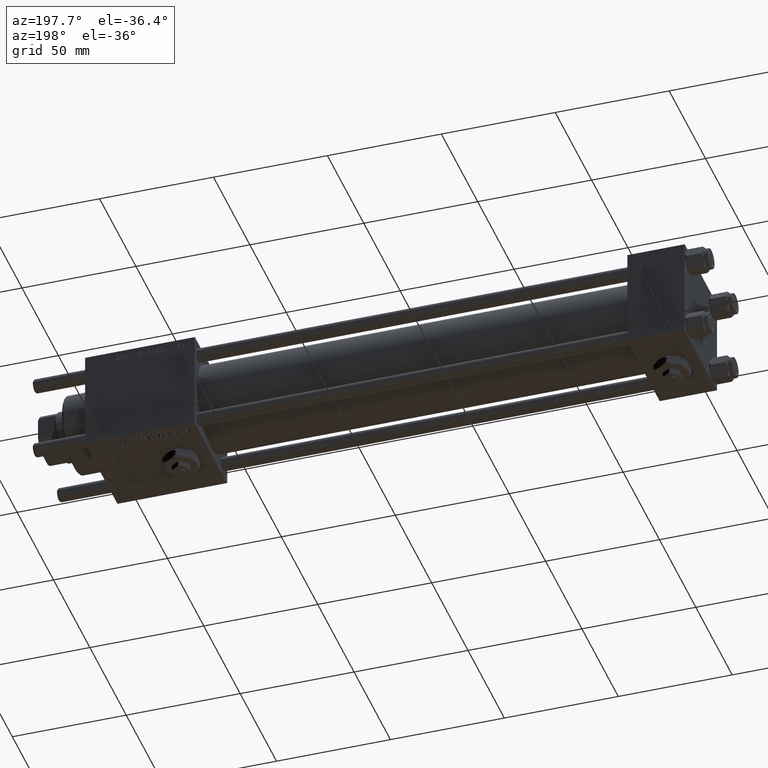
[diagram: clean part render]
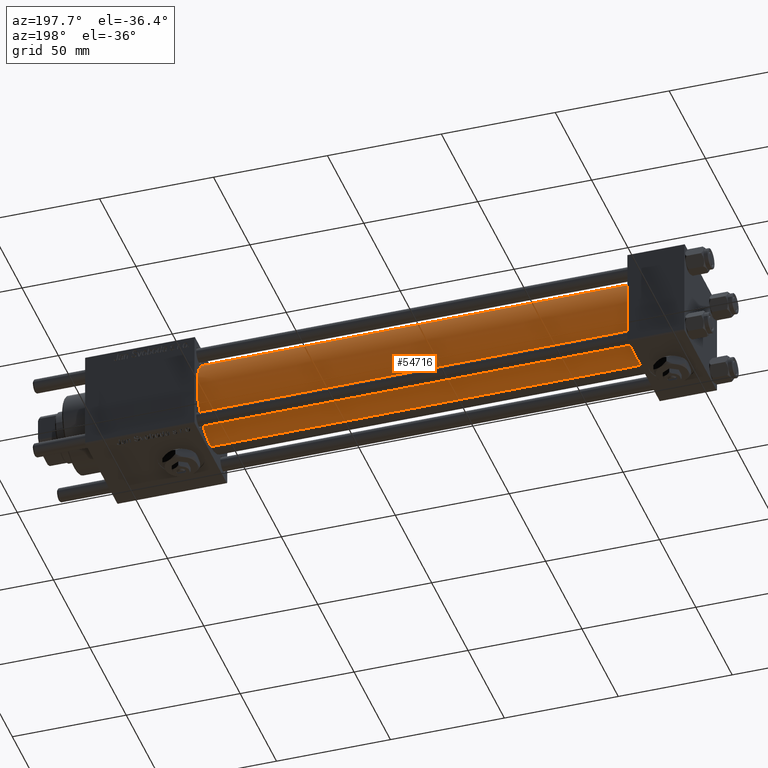
[diagram: same view with one face highlighted and labeled with its STEP entity id]
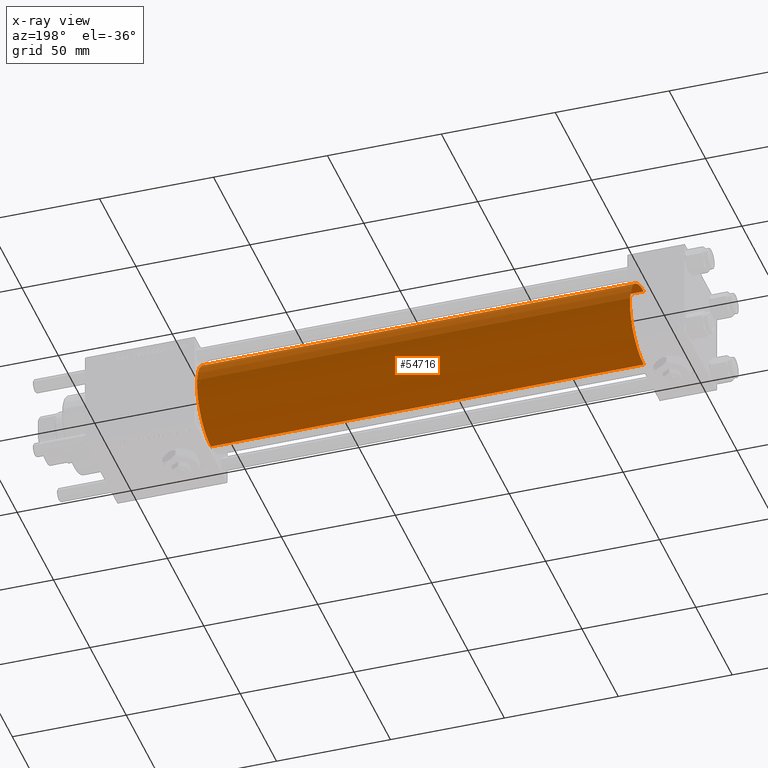
[diagram: x-ray of the same camera — body ghosted, the highlighted face saturated]
A machine part, auxiliary view. The second image highlights one B-rep face of the part: STEP entity #54716.
The next image is the same camera in x-ray: the body ghosted, the highlighted face saturated — about 0% of this face is hidden behind the body in this view.
In plain terms, the highlighted cylindrical surface (partial cylindrical patch) has radius 19 mm, axis along (-1, -0, -0).
Its self-contained STEP definition (entity closure, byte-faithful):
#581 = CARTESIAN_POINT ( 'NONE',  ( 215.0000000000000000, -2.752562955852396712E-16, -19.00000000000000000 ) ) ;
#610 = DIRECTION ( 'NONE',  ( 1.000000000000000000, 0.000000000000000000, 0.000000000000000000 ) ) ;
#4029 = CARTESIAN_POINT ( 'NONE',  ( 215.0000000000000000, -2.602085213965210642E-15, 19.00000000000000000 ) ) ;
#4521 = EDGE_CURVE ( 'NONE', #35790, #11351, #31724, .T. ) ;
#4919 = AXIS2_PLACEMENT_3D ( 'NONE', #54276, #53975, #45662 ) ;
#7683 = CARTESIAN_POINT ( 'NONE',  ( 215.0000000000000000, -2.602085213965210642E-15, 19.00000000000000000 ) ) ;
#9665 = CYLINDRICAL_SURFACE ( 'NONE', #4919, 19.00000000000000000 ) ;
#11351 = VERTEX_POINT ( 'NONE', #32439 ) ;
#12403 = VECTOR ( 'NONE', #22207, 1000.000000000000000 ) ;
#15289 = CIRCLE ( 'NONE', #23813, 19.00000000000000000 ) ;
#15656 = ORIENTED_EDGE ( 'NONE', *, *, #20876, .T. ) ;
#18178 = CARTESIAN_POINT ( 'NONE',  ( 24.99999999999999289, -2.602085213965210642E-15, 0.000000000000000000 ) ) ;
#18817 = DIRECTION ( 'NONE',  ( 0.000000000000000000, 0.000000000000000000, -1.000000000000000000 ) ) ;
#19416 = VECTOR ( 'NONE', #41339, 1000.000000000000000 ) ;
#19986 = EDGE_CURVE ( 'NONE', #40629, #57062, #32999, .T. ) ;
#20596 = CARTESIAN_POINT ( 'NONE',  ( 24.99999999999999289, -2.752562955852396712E-16, -19.00000000000000000 ) ) ;
#20876 = EDGE_CURVE ( 'NONE', #57062, #11351, #41278, .T. ) ;
#22207 = DIRECTION ( 'NONE',  ( -1.000000000000000000, -0.000000000000000000, -0.000000000000000000 ) ) ;
#22977 = CARTESIAN_POINT ( 'NONE',  ( 215.0000000000000000, -2.602085213965210642E-15, 0.000000000000000000 ) ) ;
#23488 = CARTESIAN_POINT ( 'NONE',  ( 215.0000000000000000, -2.752562955852396712E-16, -19.00000000000000000 ) ) ;
#23813 = AXIS2_PLACEMENT_3D ( 'NONE', #22977, #610, #18817 ) ;
#24253 = ORIENTED_EDGE ( 'NONE', *, *, #19986, .T. ) ;
#25589 = ORIENTED_EDGE ( 'NONE', *, *, #4521, .F. ) ;
#30397 = EDGE_LOOP ( 'NONE', ( #39102, #24253, #15656, #25589 ) ) ;
#31262 = DIRECTION ( 'NONE',  ( 1.000000000000000000, -0.000000000000000000, 0.000000000000000000 ) ) ;
#31724 = LINE ( 'NONE', #4029, #12403 ) ;
#32005 = FACE_OUTER_BOUND ( 'NONE', #30397, .T. ) ;
#32439 = CARTESIAN_POINT ( 'NONE',  ( 24.99999999999999289, -2.602085213965210642E-15, 19.00000000000000000 ) ) ;
#32999 = LINE ( 'NONE', #23488, #19416 ) ;
#35790 = VERTEX_POINT ( 'NONE', #7683 ) ;
#39102 = ORIENTED_EDGE ( 'NONE', *, *, #47562, .F. ) ;
#40629 = VERTEX_POINT ( 'NONE', #581 ) ;
#41278 = CIRCLE ( 'NONE', #48854, 19.00000000000000000 ) ;
#41339 = DIRECTION ( 'NONE',  ( -1.000000000000000000, -0.000000000000000000, -0.000000000000000000 ) ) ;
#45662 = DIRECTION ( 'NONE',  ( 0.000000000000000000, 0.000000000000000000, 1.000000000000000000 ) ) ;
#47562 = EDGE_CURVE ( 'NONE', #40629, #35790, #15289, .T. ) ;
#48854 = AXIS2_PLACEMENT_3D ( 'NONE', #18178, #31262, #54702 ) ;
#53975 = DIRECTION ( 'NONE',  ( -1.000000000000000000, -0.000000000000000000, -0.000000000000000000 ) ) ;
#54276 = CARTESIAN_POINT ( 'NONE',  ( 215.0000000000000000, -2.602085213965210642E-15, 0.000000000000000000 ) ) ;
#54702 = DIRECTION ( 'NONE',  ( 0.000000000000000000, 0.000000000000000000, 1.000000000000000000 ) ) ;
#54716 = ADVANCED_FACE ( 'NONE', ( #32005 ), #9665, .T. ) ;
#57062 = VERTEX_POINT ( 'NONE', #20596 ) ;